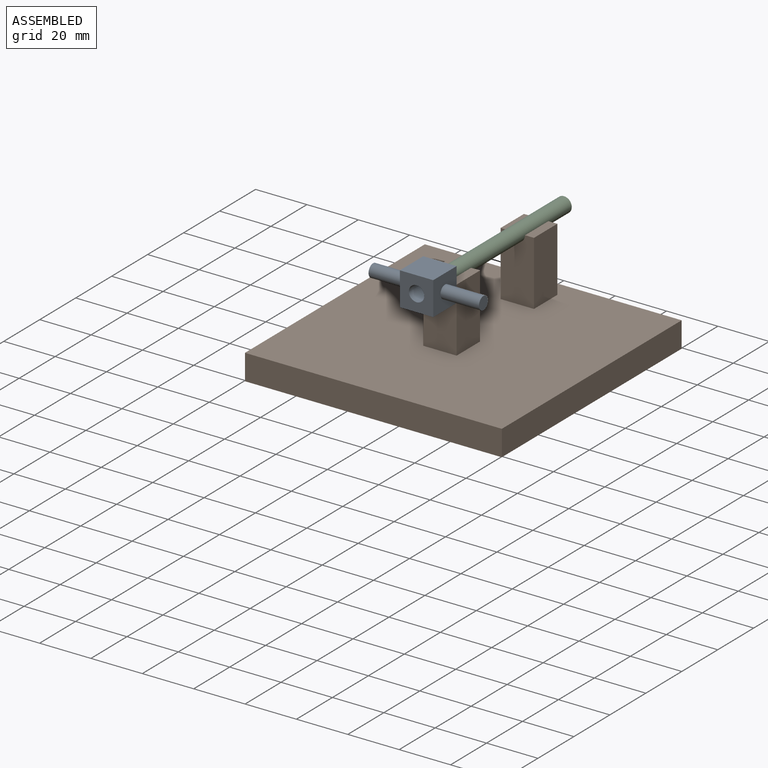
[diagram: assembled view]
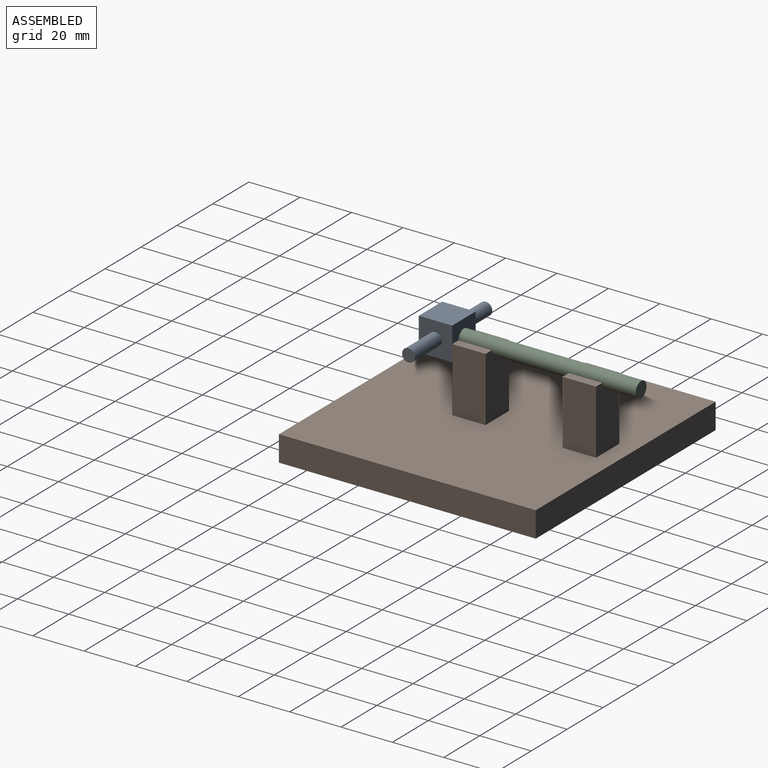
[diagram: assembled view, second angle]
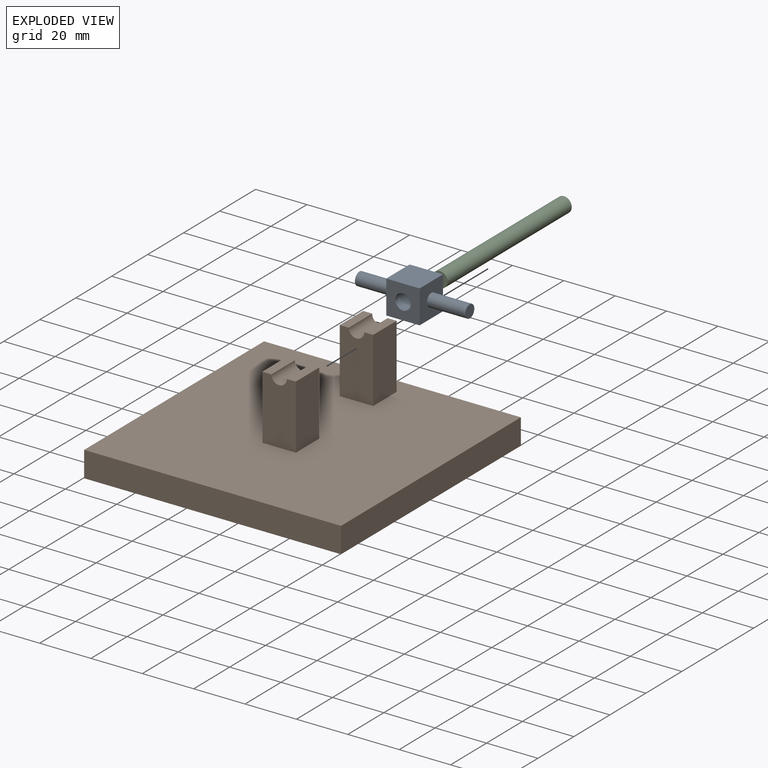
[diagram: exploded view]
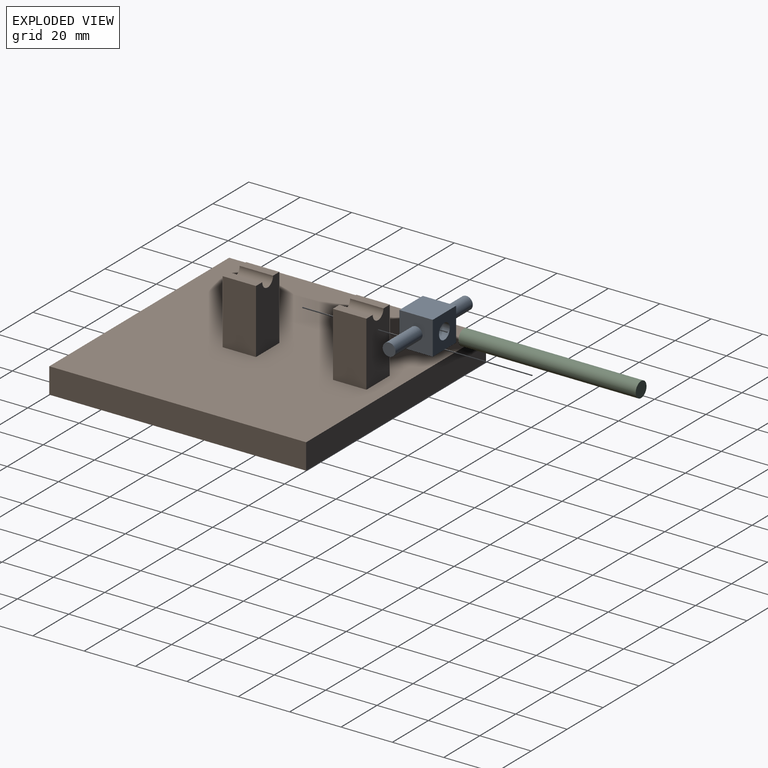
[diagram: exploded view, second angle]
ASSEMBLY  parts=3 mates=2
PART A: 11 faces, bbox 43x13x13 mm
  f0: plane 13x13mm, normal (0,0,-1), area 169mm2, adj f1,f3,f4,f5
  f1: plane 13x13mm, normal (1,0,0), area 149.4mm2, adj f0,f2,f4,f5,f9
  f2: plane 13x13mm, normal (0,0,1), area 169mm2, adj f1,f3,f4,f5
  f3: plane 13x13mm, normal (-1,0,0), area 149.4mm2, adj f0,f2,f4,f5,f7
  f4: plane 13x13mm, normal (0,-1,0), area 140.7mm2, adj f0,f1,f2,f3,f6
  f5: plane 13x13mm, normal (0,1,0), area 140.7mm2, adj f0,f1,f2,f3,f6
  f6: cylinder r=3mm len=13mm, axis (0,-1,0), area 245mm2, adj f4,f5
  f7: cylinder r=2.5mm len=15mm, axis (1,0,0), area 235.6mm2, adj f3,f8
  f8: plane 5x5mm, normal (-1,0,0), area 19.6mm2, adj f7
  f9: cylinder r=2.5mm len=15mm, axis (-1,0,0), area 235.6mm2, adj f1,f10
  f10: plane 5x5mm, normal (1,0,0), area 19.6mm2, adj f9
PART B: 20 faces, bbox 100x100x35 mm
  f0: plane 25x13mm, normal (0,1,0), area 310.9mm2, adj f1,f8,f11,f12,f13,f19
  f1: plane 13x3.5mm, normal (0,0,1), area 45.5mm2, adj f0,f10,f12,f19
  f2: plane 25x13mm, normal (0,-1,0), area 310.9mm2, adj f3,f8,f15,f16,f17,f18
  f3: plane 13x3.5mm, normal (0,0,1), area 45.5mm2, adj f2,f14,f15,f18
  f4: plane 100x10mm, normal (0,-1,0), area 1000mm2, adj f5,f7,f8,f9
  f5: plane 100x10mm, normal (1,0,0), area 1000mm2, adj f4,f6,f8,f9
  f6: plane 100x10mm, normal (0,1,0), area 1000mm2, adj f5,f7,f8,f9
  f7: plane 100x10mm, normal (-1,0,0), area 1000mm2, adj f4,f6,f8,f9
  f8: plane 100x100mm, normal (0,0,1), area 9662mm2, adj f0,f2,f4,f5,f6,f7,f10,f11
  f9: plane 100x100mm, normal (0,0,-1), area 10000mm2, adj f4,f5,f6,f7
  f10: plane 25x13mm, normal (0,-1,0), area 310.9mm2, adj f1,f8,f11,f12,f13,f19
  f11: plane 25x13mm, normal (1,0,0), area 325mm2, adj f0,f8,f10,f13
  f12: plane 25x13mm, normal (-1,0,0), area 325mm2, adj f0,f1,f8,f10
  f13: plane 13x3.5mm, normal (0,0,1), area 45.5mm2, adj f0,f10,f11,f19
  f14: plane 25x13mm, normal (0,1,0), area 310.9mm2, adj f3,f8,f15,f16,f17,f18
  f15: plane 25x13mm, normal (-1,0,0), area 325mm2, adj f2,f3,f8,f14
  f16: plane 25x13mm, normal (1,0,0), area 325mm2, adj f2,f8,f14,f17
  f17: plane 13x3.5mm, normal (0,0,1), area 45.5mm2, adj f2,f14,f16,f18
  f18: cylinder r=3mm len=13mm, axis (0,-1,0), area 122.5mm2, adj f2,f3,f14,f17
  f19: cylinder r=3mm len=13mm, axis (0,-1,0), area 122.5mm2, adj f0,f1,f10,f13
PART C: 3 faces, bbox 6x69x6 mm
  f0: cylinder r=3mm len=69mm, axis (0,1,0), area 1300.6mm2, adj f1,f2
  f1: plane 6x6mm, normal (0,-1,0), area 28.3mm2, adj f0
  f2: plane 6x6mm, normal (0,1,0), area 28.3mm2, adj f0
PLACE A t=(-0.83,15.23,18.22)mm
PLACE B t=(-0.83,28.23,-16.78)mm
PLACE C t=(-0.83,84.23,18.22)mm
MATE revolute C.f0 <-> B.f18  axis (0,-1,0) through (-0.83,15.23,18.22)mm
MATE fastened C.f0 <-> A.f6  axis (0,1,0) through (-0.83,15.23,18.22)mm
